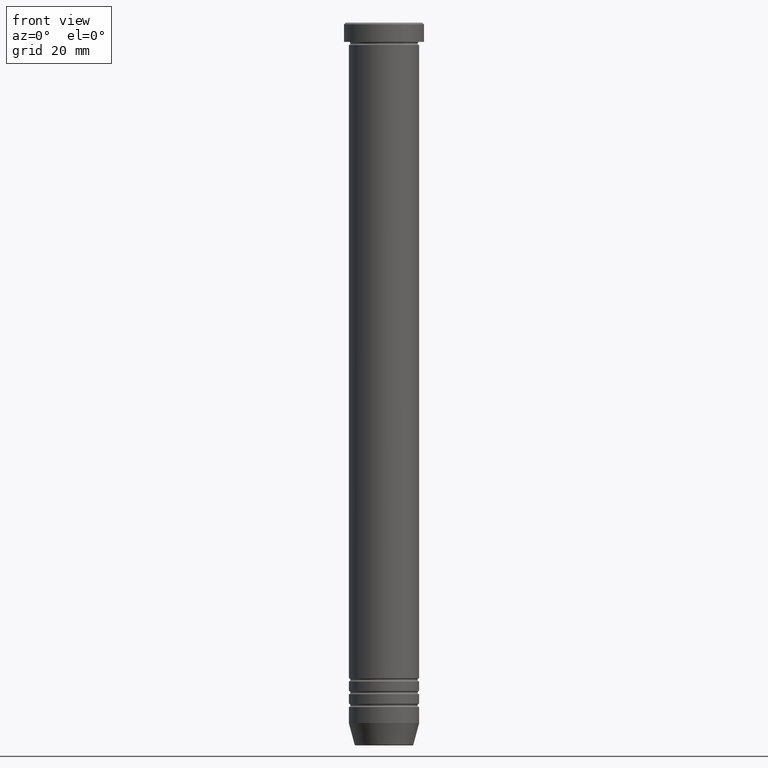
[diagram: clean part render]
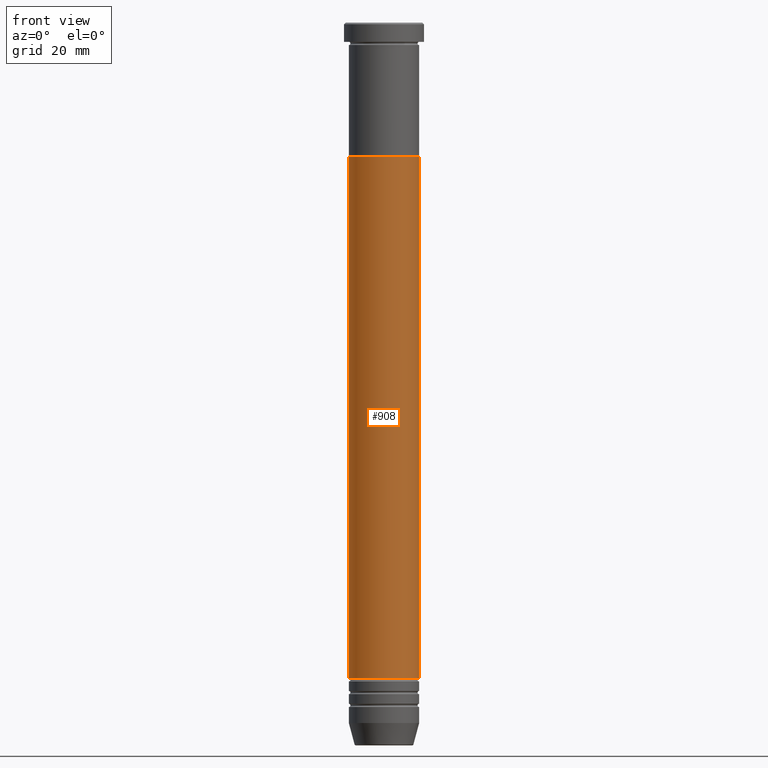
[diagram: same view with one face highlighted and labeled with its STEP entity id]
A machine part, front view. The second image highlights one B-rep face of the part: STEP entity #908.
In plain terms, the highlighted cylindrical surface (edge-blend (fillet) strip) has radius 11 mm, axis along (-0, -0, 1).
Its self-contained STEP definition (entity closure, byte-faithful):
#43 = ORIENTED_EDGE ( 'NONE', *, *, #577, .F. ) ;
#112 = ORIENTED_EDGE ( 'NONE', *, *, #128, .F. ) ;
#113 = ORIENTED_EDGE ( 'NONE', *, *, #632, .T. ) ;
#127 = DIRECTION ( 'NONE',  ( 1.000000000000000000, 0.000000000000000000, 0.000000000000000000 ) ) ;
#128 = EDGE_CURVE ( 'NONE', #1051, #375, #1070, .T. ) ;
#154 = AXIS2_PLACEMENT_3D ( 'NONE', #580, #934, #127 ) ;
#215 = AXIS2_PLACEMENT_3D ( 'NONE', #319, #677, #228 ) ;
#228 = DIRECTION ( 'NONE',  ( 1.000000000000000000, 0.000000000000000000, 0.000000000000000000 ) ) ;
#229 = DIRECTION ( 'NONE',  ( 1.000000000000000000, 0.000000000000000000, 0.000000000000000000 ) ) ;
#235 = FACE_OUTER_BOUND ( 'NONE', #1028, .T. ) ;
#270 = VECTOR ( 'NONE', #1125, 1000.000000000000000 ) ;
#287 = CARTESIAN_POINT ( 'NONE',  ( 11.00000000000000000, 0.000000000000000000, -41.99999999999999289 ) ) ;
#290 = AXIS2_PLACEMENT_3D ( 'NONE', #1031, #684, #229 ) ;
#319 = CARTESIAN_POINT ( 'NONE',  ( 0.000000000000000000, 0.000000000000000000, -205.0000000000000000 ) ) ;
#373 = VERTEX_POINT ( 'NONE', #1018 ) ;
#375 = VERTEX_POINT ( 'NONE', #287 ) ;
#469 = ORIENTED_EDGE ( 'NONE', *, *, #582, .T. ) ;
#502 = CARTESIAN_POINT ( 'NONE',  ( -10.99999999999999467, 1.347111479062087813E-15, -205.0000000000000000 ) ) ;
#508 = CARTESIAN_POINT ( 'NONE',  ( -10.99999999999999645, 1.347111479062088010E-15, 0.000000000000000000 ) ) ;
#577 = EDGE_CURVE ( 'NONE', #944, #1051, #673, .T. ) ;
#580 = CARTESIAN_POINT ( 'NONE',  ( 0.000000000000000000, 0.000000000000000000, 0.000000000000000000 ) ) ;
#582 = EDGE_CURVE ( 'NONE', #944, #373, #723, .T. ) ;
#627 = DIRECTION ( 'NONE',  ( -0.000000000000000000, -0.000000000000000000, 1.000000000000000000 ) ) ;
#632 = EDGE_CURVE ( 'NONE', #373, #375, #1141, .T. ) ;
#673 = LINE ( 'NONE', #508, #270 ) ;
#677 = DIRECTION ( 'NONE',  ( -0.000000000000000000, -0.000000000000000000, 1.000000000000000000 ) ) ;
#684 = DIRECTION ( 'NONE',  ( -0.000000000000000000, -0.000000000000000000, 1.000000000000000000 ) ) ;
#697 = CARTESIAN_POINT ( 'NONE',  ( -10.99999999999999822, 1.347111479062088405E-15, -41.99999999999999289 ) ) ;
#723 = CIRCLE ( 'NONE', #215, 10.99999999999999467 ) ;
#896 = CARTESIAN_POINT ( 'NONE',  ( 10.99999999999999645, 0.000000000000000000, 0.000000000000000000 ) ) ;
#908 = ADVANCED_FACE ( 'NONE', ( #235 ), #1033, .T. ) ;
#934 = DIRECTION ( 'NONE',  ( -0.000000000000000000, -0.000000000000000000, 1.000000000000000000 ) ) ;
#944 = VERTEX_POINT ( 'NONE', #502 ) ;
#945 = VECTOR ( 'NONE', #627, 1000.000000000000000 ) ;
#1018 = CARTESIAN_POINT ( 'NONE',  ( 10.99999999999999467, 0.000000000000000000, -205.0000000000000000 ) ) ;
#1028 = EDGE_LOOP ( 'NONE', ( #43, #469, #113, #112 ) ) ;
#1031 = CARTESIAN_POINT ( 'NONE',  ( 0.000000000000000000, 0.000000000000000000, -41.99999999999999289 ) ) ;
#1033 = CYLINDRICAL_SURFACE ( 'NONE', #154, 10.99999999999999645 ) ;
#1051 = VERTEX_POINT ( 'NONE', #697 ) ;
#1070 = CIRCLE ( 'NONE', #290, 11.00000000000000000 ) ;
#1125 = DIRECTION ( 'NONE',  ( -0.000000000000000000, -0.000000000000000000, 1.000000000000000000 ) ) ;
#1141 = LINE ( 'NONE', #896, #945 ) ;